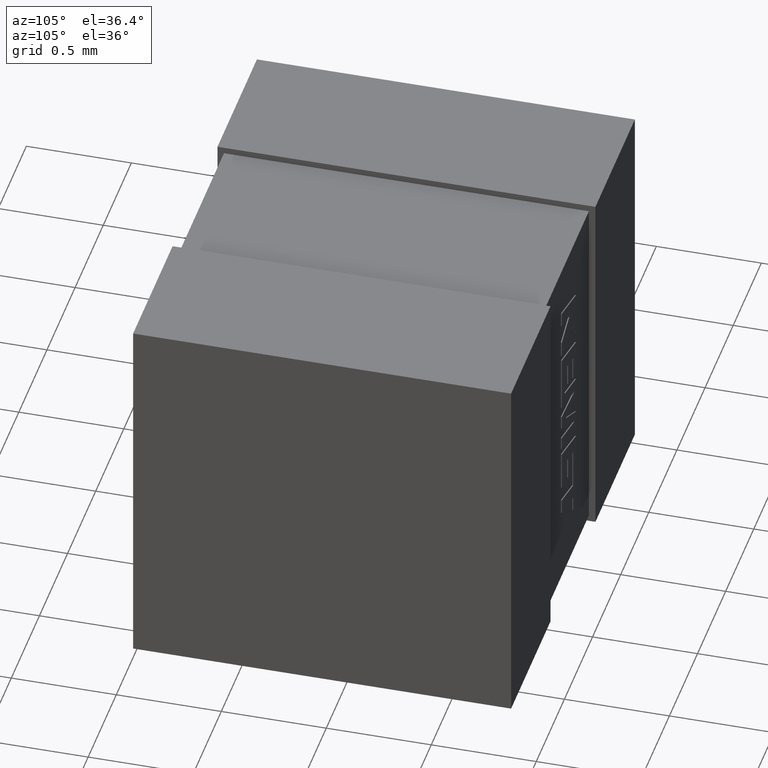
[diagram: clean part render]
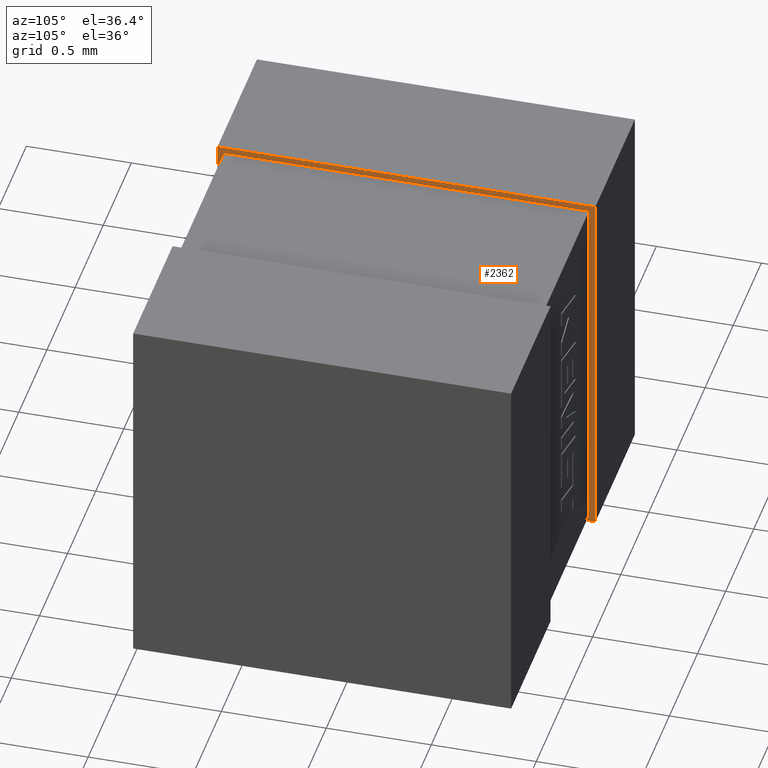
[diagram: same view with one face highlighted and labeled with its STEP entity id]
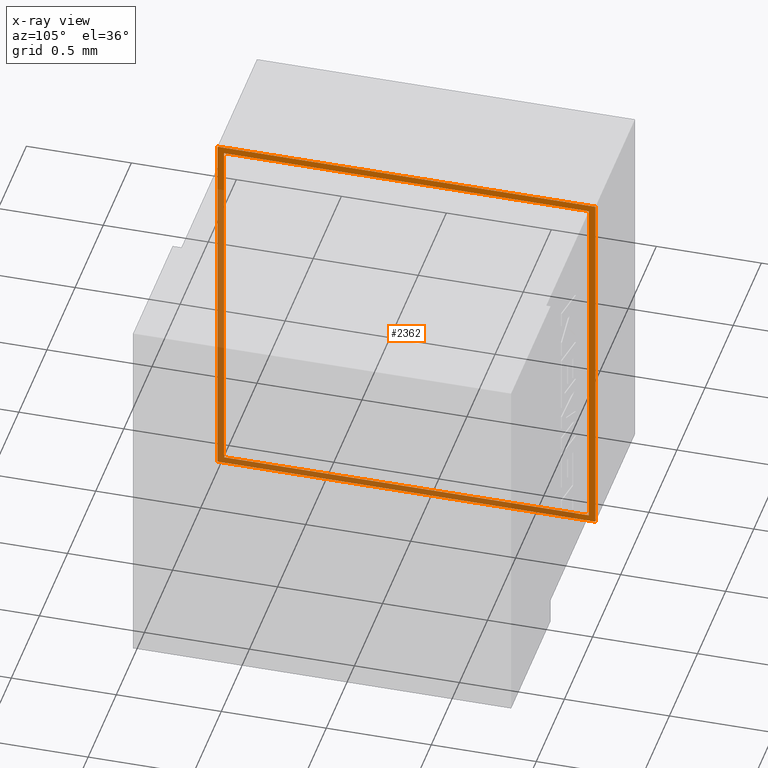
[diagram: x-ray of the same camera — body ghosted, the highlighted face saturated]
A machine part, auxiliary view. The second image highlights one B-rep face of the part: STEP entity #2362.
The next image is the same camera in x-ray: the body ghosted, the highlighted face saturated — about 46% of this face is hidden behind the body in this view.
In plain terms, the highlighted planar face has unit normal (-1, -0, 0).
Its self-contained STEP definition (entity closure, byte-faithful):
#30 = CARTESIAN_POINT ( 'NONE',  ( 0.7010000000000062800, 1.768966199999999700, -1.768966199999999500 ) ) ;
#45 = ORIENTED_EDGE ( 'NONE', *, *, #266, .T. ) ;
#81 = FACE_OUTER_BOUND ( 'NONE', #630, .T. ) ;
#89 = VECTOR ( 'NONE', #2082, 1000.000000000000000 ) ;
#155 = LINE ( 'NONE', #460, #2277 ) ;
#169 = VERTEX_POINT ( 'NONE', #1744 ) ;
#199 = CARTESIAN_POINT ( 'NONE',  ( 0.7010000000000062800, 1.800000000000000000, -1.800000000000000000 ) ) ;
#210 = DIRECTION ( 'NONE',  ( -0.0000000000000000000, -1.247691995943576200E-016, 1.000000000000000000 ) ) ;
#240 = AXIS2_PLACEMENT_3D ( 'NONE', #716, #1500, #1123 ) ;
#266 = EDGE_CURVE ( 'NONE', #1646, #1096, #793, .T. ) ;
#329 = CARTESIAN_POINT ( 'NONE',  ( 0.7010000000000062800, 2.485071883136939300E-015, -1.800000000000000300 ) ) ;
#333 = LINE ( 'NONE', #199, #2273 ) ;
#353 = ORIENTED_EDGE ( 'NONE', *, *, #1984, .F. ) ;
#390 = ORIENTED_EDGE ( 'NONE', *, *, #1591, .F. ) ;
#438 = CARTESIAN_POINT ( 'NONE',  ( 0.7010000000000062800, 2.485071883136939300E-015, -1.800000000000000300 ) ) ;
#460 = CARTESIAN_POINT ( 'NONE',  ( 0.7010000000000062800, 1.768966199999999700, -1.768966199999999500 ) ) ;
#480 = EDGE_CURVE ( 'NONE', #2046, #749, #155, .T. ) ;
#543 = LINE ( 'NONE', #1466, #2233 ) ;
#584 = CARTESIAN_POINT ( 'NONE',  ( 0.7010000000000062800, 1.768966199999999500, -0.03103379999999982300 ) ) ;
#630 = EDGE_LOOP ( 'NONE', ( #45, #1190, #885, #685 ) ) ;
#685 = ORIENTED_EDGE ( 'NONE', *, *, #1100, .T. ) ;
#686 = EDGE_CURVE ( 'NONE', #1096, #1927, #333, .T. ) ;
#716 = CARTESIAN_POINT ( 'NONE',  ( 0.7010000000000062800, 0.0000000000000000000, 0.0000000000000000000 ) ) ;
#749 = VERTEX_POINT ( 'NONE', #30 ) ;
#768 = EDGE_CURVE ( 'NONE', #749, #2169, #1266, .T. ) ;
#783 = VECTOR ( 'NONE', #1567, 1000.000000000000000 ) ;
#793 = LINE ( 'NONE', #998, #1241 ) ;
#823 = CARTESIAN_POINT ( 'NONE',  ( 0.7010000000000062800, 1.799999999999999800, 4.061078227704261800E-017 ) ) ;
#844 = DIRECTION ( 'NONE',  ( -0.0000000000000000000, 1.000000000000000000, 2.495383991887151300E-016 ) ) ;
#876 = CARTESIAN_POINT ( 'NONE',  ( 0.7010000000000062800, 1.799999999999999800, 4.061078227704261800E-017 ) ) ;
#885 = ORIENTED_EDGE ( 'NONE', *, *, #1529, .T. ) ;
#891 = FACE_BOUND ( 'NONE', #1764, .T. ) ;
#950 = VERTEX_POINT ( 'NONE', #2004 ) ;
#971 = CARTESIAN_POINT ( 'NONE',  ( 0.7010000000000062800, 0.03103379999999959400, -0.03103380000000002800 ) ) ;
#986 = VECTOR ( 'NONE', #1440, 1000.000000000000000 ) ;
#998 = CARTESIAN_POINT ( 'NONE',  ( 0.7010000000000062800, 1.800000000000000000, -1.800000000000000000 ) ) ;
#1001 = CARTESIAN_POINT ( 'NONE',  ( 0.7010000000000062800, 1.768966199999999500, -0.03103379999999982300 ) ) ;
#1096 = VERTEX_POINT ( 'NONE', #1299 ) ;
#1100 = EDGE_CURVE ( 'NONE', #169, #1646, #2120, .T. ) ;
#1123 = DIRECTION ( 'NONE',  ( 0.0000000000000000000, 0.0000000000000000000, 1.000000000000000000 ) ) ;
#1190 = ORIENTED_EDGE ( 'NONE', *, *, #686, .T. ) ;
#1241 = VECTOR ( 'NONE', #1570, 1000.000000000000000 ) ;
#1266 = LINE ( 'NONE', #1001, #2002 ) ;
#1274 = DIRECTION ( 'NONE',  ( 0.0000000000000000000, -1.000000000000000000, -1.169711246197102500E-016 ) ) ;
#1299 = CARTESIAN_POINT ( 'NONE',  ( 0.7010000000000062800, 1.800000000000000000, -1.800000000000000000 ) ) ;
#1440 = DIRECTION ( 'NONE',  ( 0.0000000000000000000, -1.000000000000000000, -2.256154570946815900E-017 ) ) ;
#1466 = CARTESIAN_POINT ( 'NONE',  ( 0.7010000000000062800, 1.768966199999999500, -0.03103379999999982300 ) ) ;
#1481 = ORIENTED_EDGE ( 'NONE', *, *, #768, .F. ) ;
#1500 = DIRECTION ( 'NONE',  ( -1.000000000000000000, -0.0000000000000000000, 0.0000000000000000000 ) ) ;
#1529 = EDGE_CURVE ( 'NONE', #1927, #169, #2269, .T. ) ;
#1567 = DIRECTION ( 'NONE',  ( 0.0000000000000000000, 0.0000000000000000000, -1.000000000000000000 ) ) ;
#1570 = DIRECTION ( 'NONE',  ( -0.0000000000000000000, 1.000000000000000000, 1.204669080539451100E-016 ) ) ;
#1591 = EDGE_CURVE ( 'NONE', #950, #2046, #2151, .T. ) ;
#1646 = VERTEX_POINT ( 'NONE', #438 ) ;
#1744 = CARTESIAN_POINT ( 'NONE',  ( 0.7010000000000062800, 2.445532035199876600E-015, 0.0000000000000000000 ) ) ;
#1764 = EDGE_LOOP ( 'NONE', ( #353, #1481, #2231, #390 ) ) ;
#1821 = CARTESIAN_POINT ( 'NONE',  ( 0.7010000000000062800, 0.03103380000000002800, -1.768966199999999900 ) ) ;
#1873 = PLANE ( 'NONE',  #240 ) ;
#1927 = VERTEX_POINT ( 'NONE', #823 ) ;
#1984 = EDGE_CURVE ( 'NONE', #2169, #950, #543, .T. ) ;
#2002 = VECTOR ( 'NONE', #210, 1000.000000000000000 ) ;
#2004 = CARTESIAN_POINT ( 'NONE',  ( 0.7010000000000062800, 0.03103379999999959400, -0.03103380000000002800 ) ) ;
#2046 = VERTEX_POINT ( 'NONE', #1821 ) ;
#2082 = DIRECTION ( 'NONE',  ( -0.0000000000000000000, 2.196658218725711600E-017, -1.000000000000000000 ) ) ;
#2120 = LINE ( 'NONE', #329, #89 ) ;
#2151 = LINE ( 'NONE', #971, #783 ) ;
#2169 = VERTEX_POINT ( 'NONE', #584 ) ;
#2231 = ORIENTED_EDGE ( 'NONE', *, *, #480, .F. ) ;
#2233 = VECTOR ( 'NONE', #1274, 1000.000000000000000 ) ;
#2269 = LINE ( 'NONE', #876, #986 ) ;
#2273 = VECTOR ( 'NONE', #2300, 1000.000000000000000 ) ;
#2277 = VECTOR ( 'NONE', #844, 1000.000000000000000 ) ;
#2300 = DIRECTION ( 'NONE',  ( 0.0000000000000000000, -1.204669080539449300E-016, 1.000000000000000000 ) ) ;
#2362 = ADVANCED_FACE ( 'NONE', ( #81, #891 ), #1873, .F. ) ;